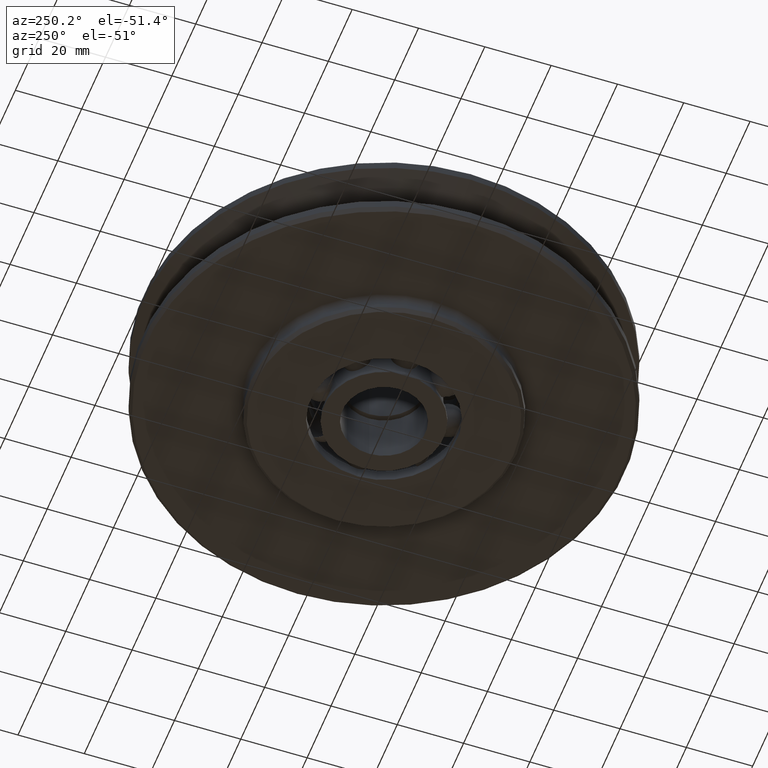
[diagram: clean part render]
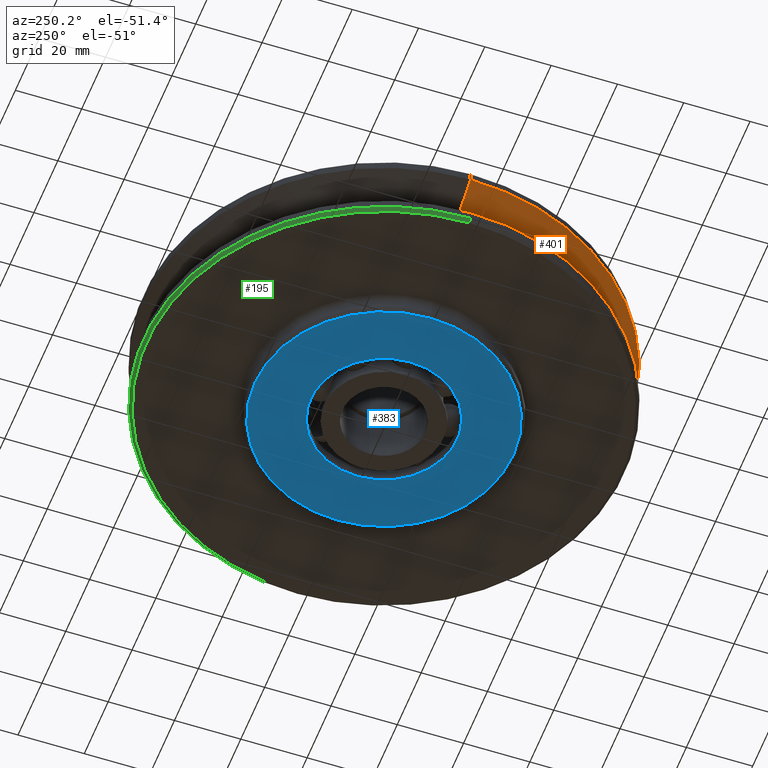
[diagram: same view with three faces highlighted in distinct colors, each labeled with its STEP entity id]
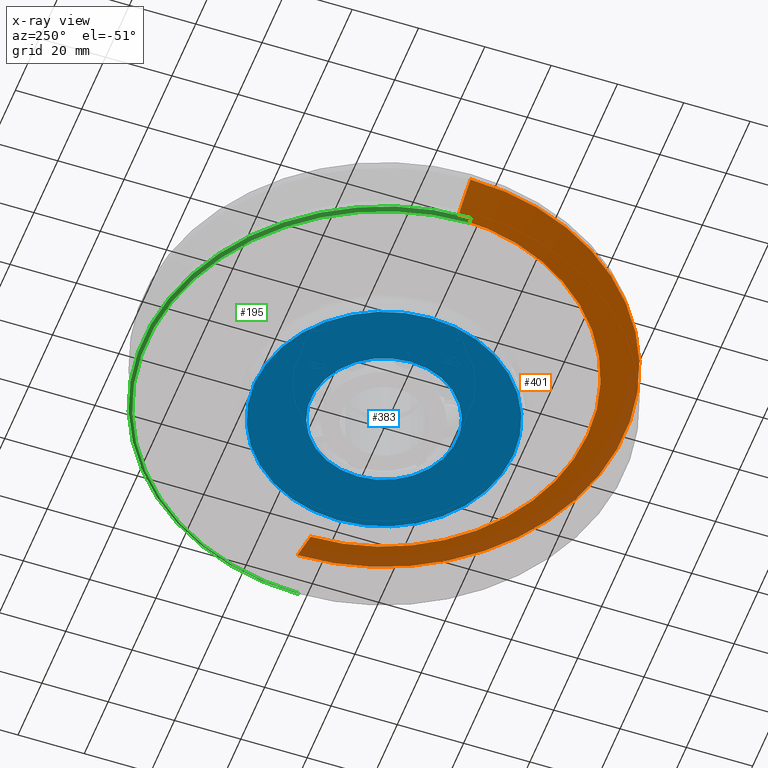
[diagram: x-ray of the same camera — body ghosted, the three highlighted faces saturated]
A machine part, auxiliary view with three faces highlighted in distinct colors.
The next image is the same camera in x-ray (body ghosted, the three faces saturated) — at least one of them is partly hidden behind the body in this view.
Their STEP definitions:

[orange] entity #401 — the highlighted conical surface has half-angle 67.5 deg.
#401=ADVANCED_FACE('',(#820),#821,.T.);
#820=FACE_OUTER_BOUND('',#1230,.T.);
#821=CONICAL_SURFACE('',#1231,66.98770651,1.17809724483896);
#1230=EDGE_LOOP('',(#2555,#2556,#2557,#2558));
#1231=AXIS2_PLACEMENT_3D('',#2559,#2560,#2561);
#2555=ORIENTED_EDGE('',*,*,#2652,.T.);
#2556=ORIENTED_EDGE('',*,*,#3074,.F.);
#2557=ORIENTED_EDGE('',*,*,#2653,.T.);
#2558=ORIENTED_EDGE('',*,*,#2650,.T.);
#2559=CARTESIAN_POINT('',(0.0,0.0,5.239681225));
#2560=DIRECTION('',(-0.0,-0.0,1.0));
#2561=DIRECTION('',(1.0,0.0,0.0));
#2650=EDGE_CURVE('',#3106,#3108,#3257,.T.);
#2652=EDGE_CURVE('',#3108,#3259,#3260,.T.);
#2653=EDGE_CURVE('',#3261,#3106,#3262,.T.);
#3074=EDGE_CURVE('',#3261,#3259,#3891,.T.);
#3106=VERTEX_POINT('',#3923);
#3108=VERTEX_POINT('',#3925);
#3257=CIRCLE('',#4778,61.47541302);
#3259=VERTEX_POINT('',#4780);
#3260=LINE('',#4781,#4782);
#3261=VERTEX_POINT('',#4783);
#3262=LINE('',#4784,#4785);
#3891=CIRCLE('',#7810,72.5);
#3923=CARTESIAN_POINT('',(-61.47541302,7.52856677812045E-015,2.9564145));
#3925=CARTESIAN_POINT('',(61.47541302,0.0,2.9564145));
#4778=AXIS2_PLACEMENT_3D('',#7949,#7950,#7951);
#4780=CARTESIAN_POINT('',(72.5,0.0,7.52294795));
#4781=CARTESIAN_POINT('',(66.98770651,-8.20362803596938E-015,5.239681225));
#4782=VECTOR('',#7952,1.0);
#4783=CARTESIAN_POINT('',(-72.5,8.87868929381831E-015,7.52294795));
#4784=CARTESIAN_POINT('',(-66.98770651,8.20362803596938E-015,5.239681225));
#4785=VECTOR('',#7953,1.0);
#7810=AXIS2_PLACEMENT_3D('',#8421,#8422,#8423);
#7949=CARTESIAN_POINT('',(0.0,0.0,2.9564145));
#7950=DIRECTION('',(0.0,0.0,1.0));
#7951=DIRECTION('',(1.0,0.0,0.0));
#7952=DIRECTION('',(0.923879532412857,-1.13142611216716E-016,0.382683432602721));
#7953=DIRECTION('',(0.923879532412857,-1.13142611216716E-016,-0.382683432602721));
#8421=CARTESIAN_POINT('',(0.0,0.0,7.52294795));
#8422=DIRECTION('',(0.0,0.0,1.0));
#8423=DIRECTION('',(1.0,0.0,0.0));

[blue] entity #383 — the highlighted planar face has unit normal (-0, 0, -1).
#383=ADVANCED_FACE('',(#791,#792),#793,.T.);
#791=FACE_BOUND('',#1201,.T.);
#792=FACE_OUTER_BOUND('',#1202,.T.);
#793=PLANE('',#1203);
#1201=EDGE_LOOP('',(#2483,#2484));
#1202=EDGE_LOOP('',(#2485,#2486));
#1203=AXIS2_PLACEMENT_3D('',#2487,#2488,#2489);
#2483=ORIENTED_EDGE('',*,*,#2986,.T.);
#2484=ORIENTED_EDGE('',*,*,#2898,.T.);
#2485=ORIENTED_EDGE('',*,*,#2684,.F.);
#2486=ORIENTED_EDGE('',*,*,#3086,.F.);
#2487=CARTESIAN_POINT('',(19.5,0.0,-16.0));
#2488=DIRECTION('',(-0.0,0.0,-1.0));
#2489=DIRECTION('',(-1.0,-0.0,0.0));
#2684=EDGE_CURVE('',#3306,#3308,#3309,.T.);
#2898=EDGE_CURVE('',#3667,#3665,#3668,.T.);
#2986=EDGE_CURVE('',#3665,#3667,#3795,.T.);
#3086=EDGE_CURVE('',#3308,#3306,#3903,.T.);
#3306=VERTEX_POINT('',#4837);
#3308=VERTEX_POINT('',#4840);
#3309=CIRCLE('',#4841,39.0);
#3665=VERTEX_POINT('',#6559);
#3667=VERTEX_POINT('',#6562);
#3668=CIRCLE('',#6563,22.1);
#3795=CIRCLE('',#7149,22.1);
#3903=CIRCLE('',#7822,39.0);
#4837=CARTESIAN_POINT('',(39.0,0.0,-16.0));
#4840=CARTESIAN_POINT('',(-39.0,4.77612251667468E-015,-16.0));
#4841=AXIS2_PLACEMENT_3D('',#8005,#8006,#8007);
#6559=CARTESIAN_POINT('',(22.1,0.0,-16.0));
#6562=CARTESIAN_POINT('',(-22.1,-2.70646942611565E-015,-16.0));
#6563=AXIS2_PLACEMENT_3D('',#8278,#8279,#8280);
#7149=AXIS2_PLACEMENT_3D('',#8382,#8383,#8384);
#7822=AXIS2_PLACEMENT_3D('',#8436,#8437,#8438);
#8005=CARTESIAN_POINT('',(0.0,0.0,-16.0));
#8006=DIRECTION('',(0.0,0.0,1.0));
#8007=DIRECTION('',(1.0,0.0,0.0));
#8278=CARTESIAN_POINT('',(0.0,0.0,-16.0));
#8279=DIRECTION('',(0.0,-0.0,1.0));
#8280=DIRECTION('',(1.0,0.0,0.0));
#8382=CARTESIAN_POINT('',(0.0,0.0,-16.0));
#8383=DIRECTION('',(0.0,-0.0,1.0));
#8384=DIRECTION('',(1.0,0.0,0.0));
#8436=CARTESIAN_POINT('',(0.0,0.0,-16.0));
#8437=DIRECTION('',(0.0,0.0,1.0));
#8438=DIRECTION('',(1.0,0.0,0.0));

[green] entity #195 — the highlighted conical surface has half-angle 45 deg.
#195=ADVANCED_FACE('',(#487),#488,.T.);
#487=FACE_OUTER_BOUND('',#897,.T.);
#488=CONICAL_SURFACE('',#898,72.0,0.785398163397448);
#897=EDGE_LOOP('',(#1411,#1412,#1413,#1414));
#898=AXIS2_PLACEMENT_3D('',#1415,#1416,#1417);
#1411=ORIENTED_EDGE('',*,*,#2669,.F.);
#1412=ORIENTED_EDGE('',*,*,#2670,.T.);
#1413=ORIENTED_EDGE('',*,*,#2671,.F.);
#1414=ORIENTED_EDGE('',*,*,#2666,.F.);
#1415=CARTESIAN_POINT('',(0.0,0.0,-10.5));
#1416=DIRECTION('',(-0.0,-0.0,1.0));
#1417=DIRECTION('',(1.0,0.0,0.0));
#2666=EDGE_CURVE('',#3278,#3280,#3281,.T.);
#2669=EDGE_CURVE('',#3284,#3278,#3285,.T.);
#2670=EDGE_CURVE('',#3284,#3286,#3287,.T.);
#2671=EDGE_CURVE('',#3280,#3286,#3288,.T.);
#3278=VERTEX_POINT('',#4803);
#3280=VERTEX_POINT('',#4806);
#3281=CIRCLE('',#4807,72.5);
#3284=VERTEX_POINT('',#4811);
#3285=LINE('',#4812,#4813);
#3286=VERTEX_POINT('',#4814);
#3287=CIRCLE('',#4815,71.5);
#3288=LINE('',#4816,#4817);
#4803=CARTESIAN_POINT('',(72.5,0.0,-10.0));
#4806=CARTESIAN_POINT('',(-72.5,8.87868929381831E-015,-10.0));
#4807=AXIS2_PLACEMENT_3D('',#7975,#7976,#7977);
#4811=CARTESIAN_POINT('',(71.5,0.0,-11.0));
#4812=CARTESIAN_POINT('',(72.0,-8.81745695386094E-015,-10.5));
#4813=VECTOR('',#7979,1.0);
#4814=CARTESIAN_POINT('',(-71.5,8.75622461390357E-015,-11.0));
#4815=AXIS2_PLACEMENT_3D('',#7980,#7981,#7982);
#4816=CARTESIAN_POINT('',(-72.0,8.81745695386094E-015,-10.5));
#4817=VECTOR('',#7983,1.0);
#7975=CARTESIAN_POINT('',(0.0,0.0,-10.0));
#7976=DIRECTION('',(0.0,0.0,1.0));
#7977=DIRECTION('',(1.0,0.0,0.0));
#7979=DIRECTION('',(0.707106781186547,-8.65956056235493E-017,0.707106781186548));
#7980=CARTESIAN_POINT('',(0.0,0.0,-11.0));
#7981=DIRECTION('',(0.0,0.0,1.0));
#7982=DIRECTION('',(1.0,0.0,0.0));
#7983=DIRECTION('',(0.707106781186547,-8.65956056235493E-017,-0.707106781186548));